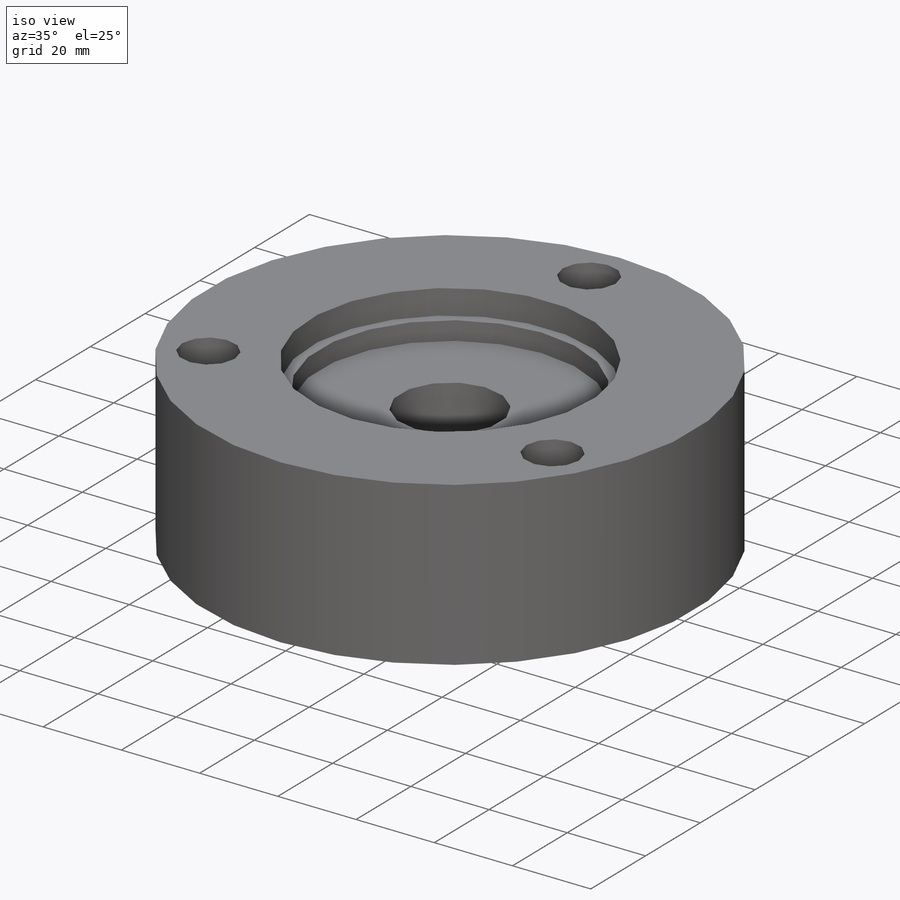
[diagram: iso view]
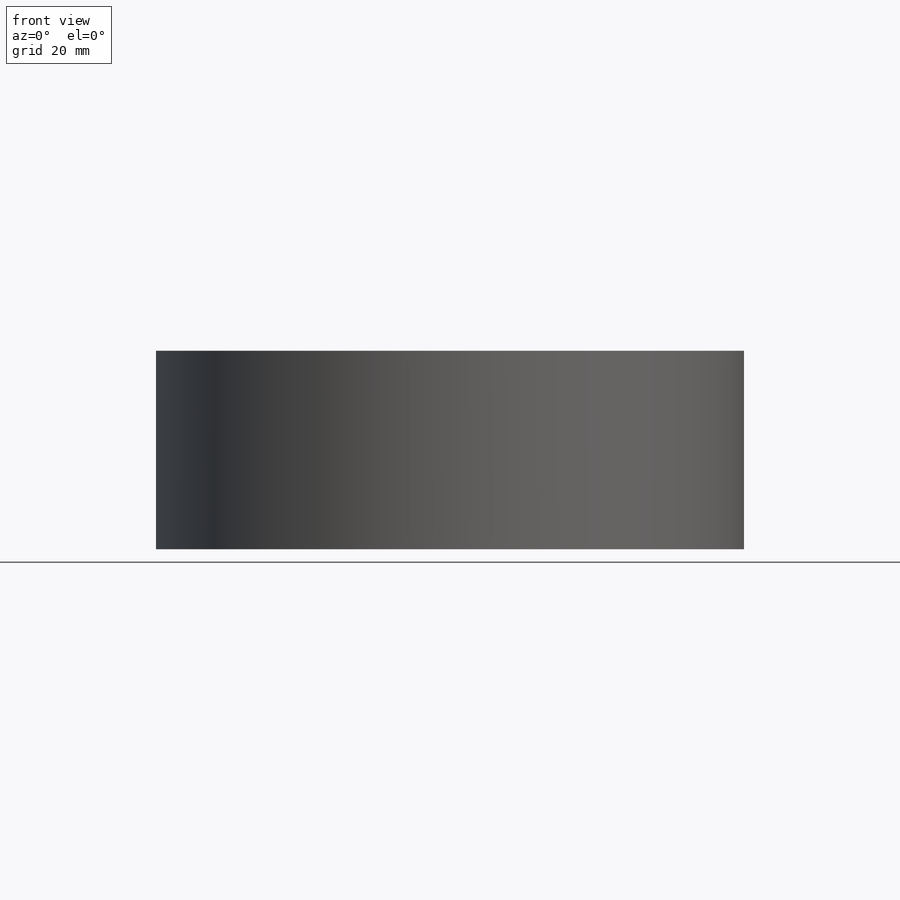
[diagram: front view]
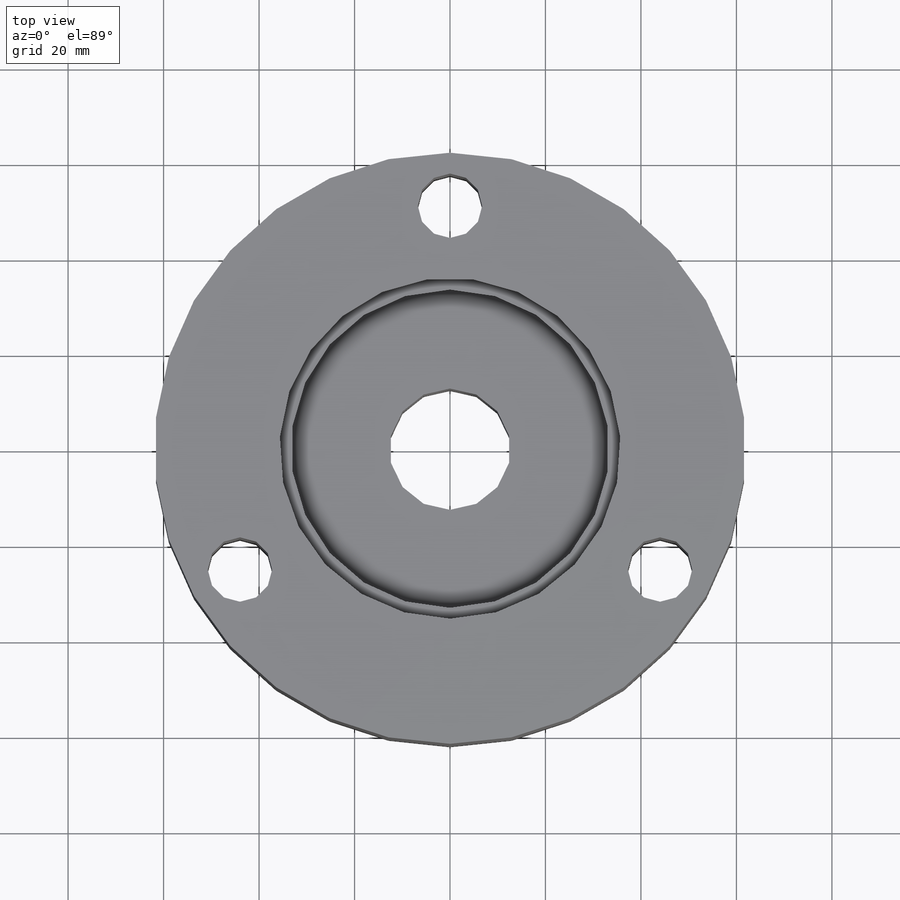
[diagram: top view]
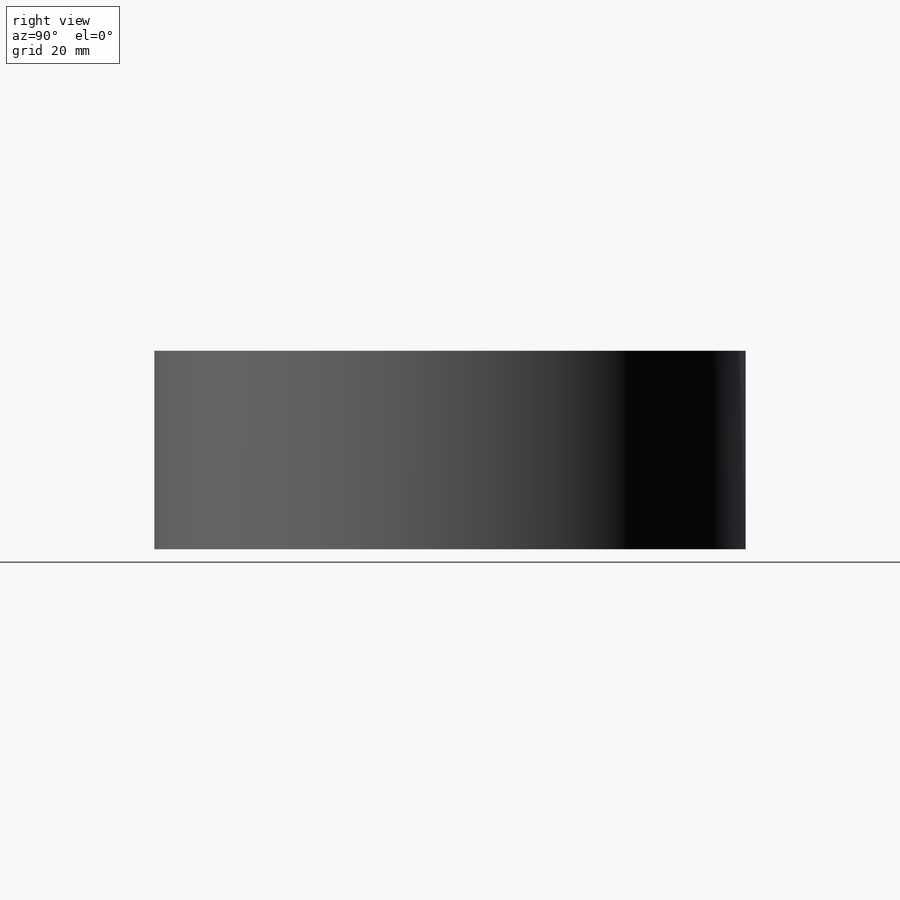
[diagram: right view]
SOLIDWORKS PART (.sldprt)
format: sldprt  version: not decoded by parser v0  size: 574,976 bytes
history: native  units: mm
features: sketch x5, plane x4, cut_extrude x4, material x1, extrude x1 (+11 scaffold rows collapsed)
feature tree (26):
  scaffold x11  (default folders/planes/origin — collapsed)
  material  "AISI 1018 Steel Cold Rolled"
  plane  "Plane1"
  plane  "Plane2"
  plane  "Plane3"
  sketch  "Sketch1"  dims[D1=123.825mm D2=57.15mm]
  extrude  "Base-Extrude"  Depth=7.9248mm
  plane  "Plane4"  Offset=6.35mm
  sketch  "Sketch11"  dims[D1=66.675mm D2=85.725mm D3=85.725mm]
  cut_extrude  "Cut-Extrude1"  Depth=9.525mm
  sketch  "Sketch12"  dims[D1=71.4248mm]
  cut_extrude  "Cut-Extrude2"  Depth=4.7752mm
  sketch  "Sketch13"  dims[D1=25.4mm]
  cut_extrude  "Cut-Extrude3"  [1 undecoded]
  sketch  "Sketch32"  dims[c1.D2=12.7mm c1.D3=12.7mm c1.D4=12.7mm c1.D1=12.7mm c2.D2=12.7mm c2.D1=12.7mm c3.D2=12.7mm c3.D3=12.7mm c4.D2=12.7mm c4.D1=101.6mm c4.D5=13.4874mm c5.D1=50.8mm c6.D1=30.0deg c6.D3=50.8mm c7.D1=~62.47896mm c8.D1=30.0deg c9.D1=50.8mm c10.D1=30.0deg c11.D1=50.8mm c12.D1=30.0deg c12.D2=50.8mm c13.D2=120.0deg c13.D3=~43.994091mm c14.D3=120.0deg c14.D4=3.0]
  cut_extrude  "Cut-Extrude4"  Depth=45.72mm
decode coverage: 9 of 10 modeling features carry decoded parameters
note: ~ marks probable driven/reference dimensions
note: 1 parameter value undecoded
note: suppression state not decoded; provenance and decode notes live in map.json
